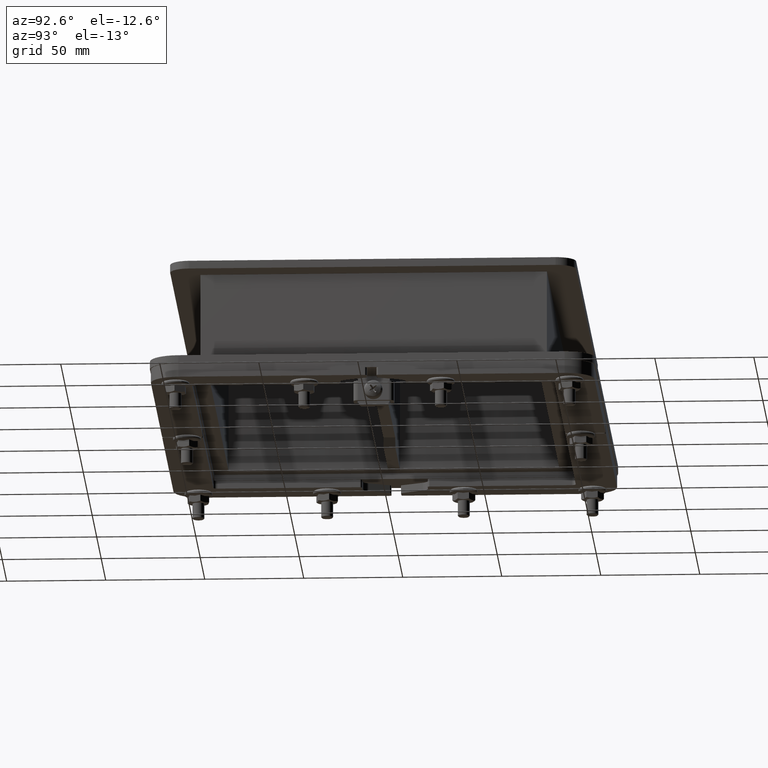
[diagram: clean part render]
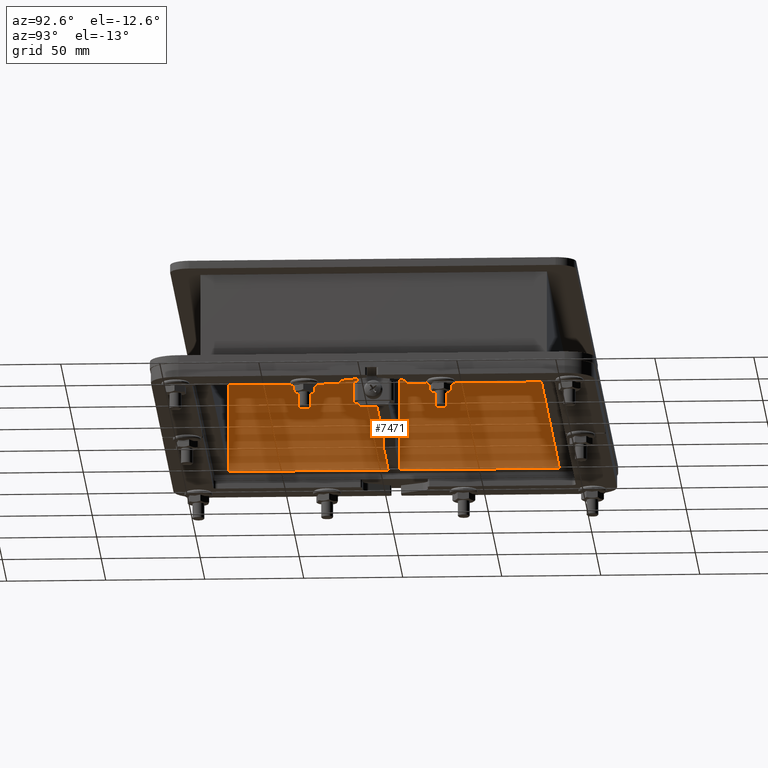
[diagram: same view with one face highlighted and labeled with its STEP entity id]
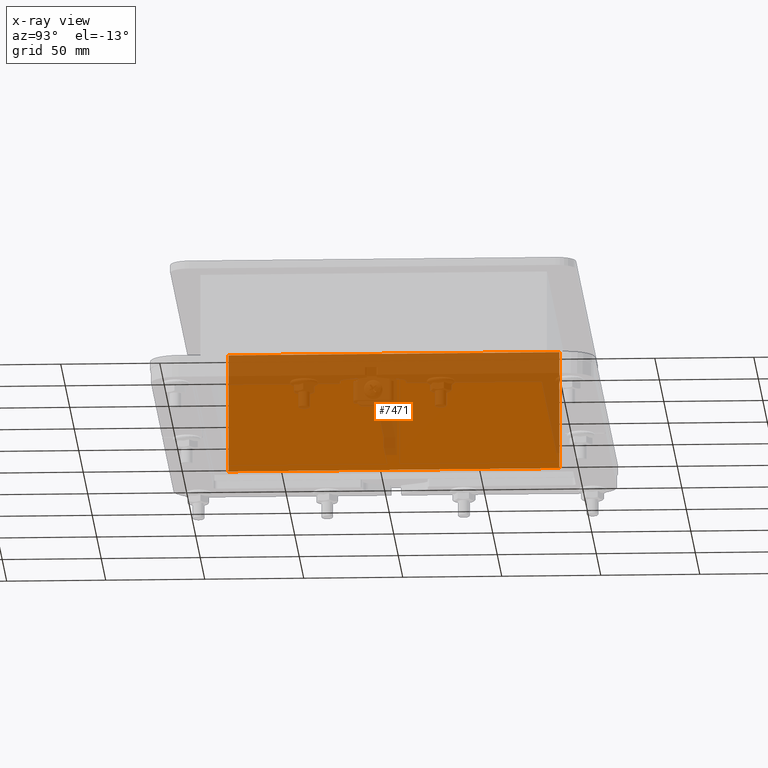
[diagram: x-ray of the same camera — body ghosted, the highlighted face saturated]
A machine part, auxiliary view. The second image highlights one B-rep face of the part: STEP entity #7471.
The next image is the same camera in x-ray: the body ghosted, the highlighted face saturated — about 34% of this face is hidden behind the body in this view.
In plain terms, the highlighted planar face has unit normal (1, -0, -0).
Its self-contained STEP definition (entity closure, byte-faithful):
#642=PLANE('',#8351);
#980=FACE_OUTER_BOUND('',#1444,.T.);
#1444=EDGE_LOOP('',(#6128,#6129,#6130,#6131));
#1977=LINE('',#11795,#2694);
#1979=LINE('',#11799,#2696);
#1981=LINE('',#11803,#2698);
#1983=LINE('',#11806,#2700);
#2694=VECTOR('',#9640,10.);
#2696=VECTOR('',#9644,10.);
#2698=VECTOR('',#9648,10.);
#2700=VECTOR('',#9652,10.);
#3640=VERTEX_POINT('',#11792);
#3641=VERTEX_POINT('',#11794);
#3642=VERTEX_POINT('',#11798);
#3643=VERTEX_POINT('',#11802);
#4525=EDGE_CURVE('',#3641,#3640,#1977,.F.);
#4527=EDGE_CURVE('',#3642,#3641,#1979,.T.);
#4529=EDGE_CURVE('',#3643,#3642,#1981,.F.);
#4531=EDGE_CURVE('',#3640,#3643,#1983,.T.);
#6128=ORIENTED_EDGE('',*,*,#4531,.T.);
#6129=ORIENTED_EDGE('',*,*,#4529,.T.);
#6130=ORIENTED_EDGE('',*,*,#4527,.T.);
#6131=ORIENTED_EDGE('',*,*,#4525,.T.);
#7471=ADVANCED_FACE('',(#980),#642,.T.);
#8351=AXIS2_PLACEMENT_3D('',#11807,#9653,#9654);
#9640=DIRECTION('',(-5.9211894646675E-16,1.,0.));
#9644=DIRECTION('',(-1.,-1.27319154200133E-16,0.));
#9648=DIRECTION('',(2.96059473233375E-16,-1.,0.));
#9652=DIRECTION('',(1.,0.,0.));
#9653=DIRECTION('center_axis',(0.,0.,1.));
#9654=DIRECTION('ref_axis',(1.,0.,0.));
#11792=CARTESIAN_POINT('',(-83.5,-30.,2.));
#11794=CARTESIAN_POINT('',(-83.5,30.,2.));
#11795=CARTESIAN_POINT('',(-83.5,15.,2.));
#11798=CARTESIAN_POINT('',(83.5,30.,2.));
#11799=CARTESIAN_POINT('',(87.2,30.,2.));
#11802=CARTESIAN_POINT('',(83.5,-30.,2.));
#11803=CARTESIAN_POINT('',(83.5,-15.,2.));
#11806=CARTESIAN_POINT('',(-87.2,-30.,2.));
#11807=CARTESIAN_POINT('Origin',(0.,-4.44089209850063E-15,2.));